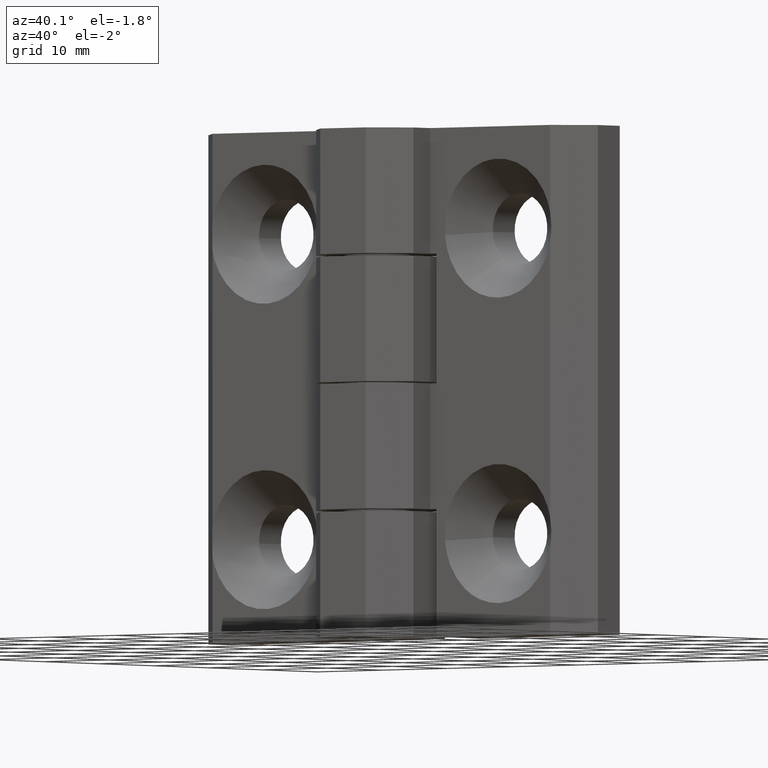
[diagram: clean part render]
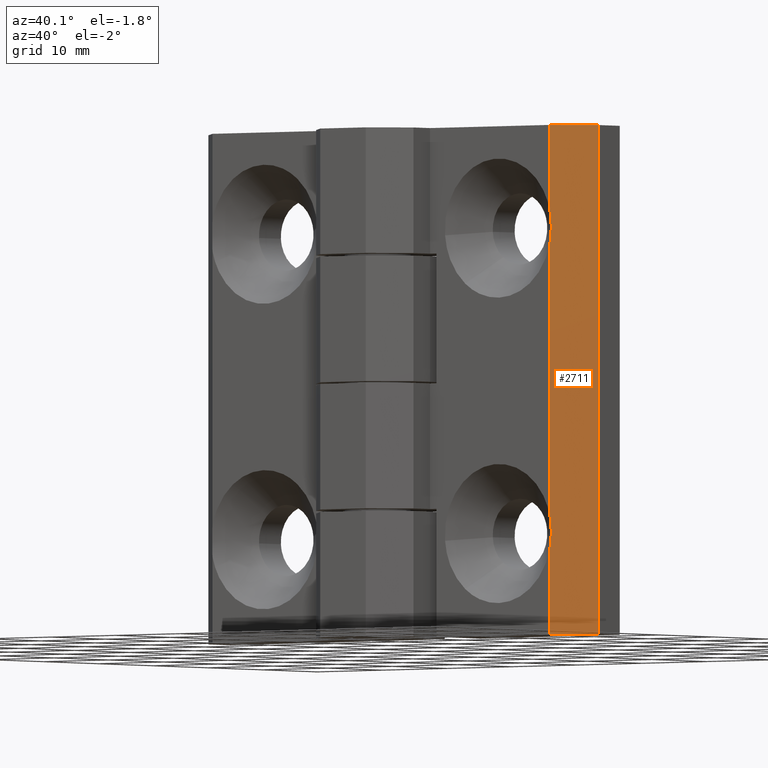
[diagram: same view with one face highlighted and labeled with its STEP entity id]
A machine part, auxiliary view. The second image highlights one B-rep face of the part: STEP entity #2711.
In plain terms, the highlighted face is a freeform B-spline surface patch.
Its self-contained STEP definition (entity closure, byte-faithful):
#830=CARTESIAN_POINT('',(26.000002659857198,0.500000023748733,46.200002036056802));
#831=VERTEX_POINT('',#830);
#847=CARTESIAN_POINT('',(26.000002659857198,0.500000023748733,49.800002523698502));
#848=VERTEX_POINT('',#847);
#849=CARTESIAN_POINT('',(26.000002659857191,0.500000023748725,49.800002523698502));
#850=CARTESIAN_POINT('',(26.133335999523609,0.633333363415146,48.600002361151269));
#851=CARTESIAN_POINT('',(26.133335999523620,0.633333363415149,47.400002198604042));
#852=CARTESIAN_POINT('',(26.000002659857198,0.500000023748737,46.200002036056802));
#853=QUASI_UNIFORM_CURVE('',3,(#849,#850,#851,#852),.UNSPECIFIED.,.F.,.U.);
#854=EDGE_CURVE('',#848,#831,#853,.T.);
#1158=CARTESIAN_POINT('',(26.000002659857198,0.500000023748733,10.200002036056800));
#1159=VERTEX_POINT('',#1158);
#1175=CARTESIAN_POINT('',(26.000002659857198,0.500000023748733,13.800002523698540));
#1176=VERTEX_POINT('',#1175);
#1177=CARTESIAN_POINT('',(26.000002659857198,0.500000023748730,13.800002523698540));
#1178=CARTESIAN_POINT('',(26.133335999523620,0.633333363415149,12.600002361151290));
#1179=CARTESIAN_POINT('',(26.133335999523620,0.633333363415148,11.400002198604049));
#1180=CARTESIAN_POINT('',(26.000002659857198,0.500000023748728,10.200002036056800));
#1181=QUASI_UNIFORM_CURVE('',3,(#1177,#1178,#1179,#1180),.UNSPECIFIED.,.F.,.U.);
#1182=EDGE_CURVE('',#1176,#1159,#1181,.T.);
#2503=CARTESIAN_POINT('',(26.000002659857198,0.500000023748733,60.000002849847100));
#2504=VERTEX_POINT('',#2503);
#2505=CARTESIAN_POINT('',(30.000002849847100,4.500000213738530,60.000002849847100));
#2506=VERTEX_POINT('',#2505);
#2507=CARTESIAN_POINT('',(26.000002659857198,0.500000023748733,60.000002849847100));
#2508=CARTESIAN_POINT('',(30.000002849847100,4.500000213738530,60.000002849847100));
#2509=QUASI_UNIFORM_CURVE('',1,(#2507,#2508),.UNSPECIFIED.,.F.,.U.);
#2510=EDGE_CURVE('',#2504,#2506,#2509,.T.);
#2655=CARTESIAN_POINT('',(30.000002849847100,4.500000213738530,0.0));
#2656=VERTEX_POINT('',#2655);
#2670=CARTESIAN_POINT('',(30.000002849847100,4.500000213738530,60.000002849847100));
#2671=CARTESIAN_POINT('',(30.000002849847100,4.500000213738530,0.0));
#2672=QUASI_UNIFORM_CURVE('',1,(#2670,#2671),.UNSPECIFIED.,.F.,.U.);
#2673=EDGE_CURVE('',#2506,#2656,#2672,.T.);
#2678=CARTESIAN_POINT('',(30.199802265088898,4.699799628980311,-2.997000026058224));
#2679=CARTESIAN_POINT('',(25.800202279020109,0.300199642911654,-2.997000026058224));
#2680=CARTESIAN_POINT('',(30.199802265088898,4.699799628980311,62.997004485230804));
#2681=CARTESIAN_POINT('',(25.800202279020109,0.300199642911654,62.997004485230804));
#2682=B_SPLINE_SURFACE_WITH_KNOTS('',1,1,((#2678,#2680),(#2679,#2681)),.UNSPECIFIED.,.F.,.F.,.U.,(2,2),(2,2),(0.0,6.221973969314865),(0.0,65.994004511289035),.UNSPECIFIED.);
#2683=CARTESIAN_POINT('',(26.000002659857198,0.500000023748733,60.000002849847100));
#2684=CARTESIAN_POINT('',(26.000002659857198,0.500000023748733,49.800002523698502));
#2685=QUASI_UNIFORM_CURVE('',1,(#2683,#2684),.UNSPECIFIED.,.F.,.U.);
#2686=EDGE_CURVE('',#2504,#848,#2685,.T.);
#2687=ORIENTED_EDGE('',*,*,#2686,.T.);
#2688=ORIENTED_EDGE('',*,*,#854,.T.);
#2689=CARTESIAN_POINT('',(26.000002659857198,0.500000023748733,46.200002036056802));
#2690=CARTESIAN_POINT('',(26.000002659857198,0.500000023748733,13.800002523698540));
#2691=QUASI_UNIFORM_CURVE('',1,(#2689,#2690),.UNSPECIFIED.,.F.,.U.);
#2692=EDGE_CURVE('',#831,#1176,#2691,.T.);
#2693=ORIENTED_EDGE('',*,*,#2692,.T.);
#2694=ORIENTED_EDGE('',*,*,#1182,.T.);
#2695=CARTESIAN_POINT('',(26.000002659857198,0.500000023748733,0.0));
#2696=VERTEX_POINT('',#2695);
#2697=CARTESIAN_POINT('',(26.000002659857198,0.500000023748733,10.200002036056800));
#2698=CARTESIAN_POINT('',(26.000002659857198,0.500000023748733,0.0));
#2699=QUASI_UNIFORM_CURVE('',1,(#2697,#2698),.UNSPECIFIED.,.F.,.U.);
#2700=EDGE_CURVE('',#1159,#2696,#2699,.T.);
#2701=ORIENTED_EDGE('',*,*,#2700,.T.);
#2702=CARTESIAN_POINT('',(26.000002659857198,0.500000023748733,0.0));
#2703=CARTESIAN_POINT('',(30.000002849847100,4.500000213738530,0.0));
#2704=QUASI_UNIFORM_CURVE('',1,(#2702,#2703),.UNSPECIFIED.,.F.,.U.);
#2705=EDGE_CURVE('',#2696,#2656,#2704,.T.);
#2706=ORIENTED_EDGE('',*,*,#2705,.T.);
#2707=ORIENTED_EDGE('',*,*,#2673,.F.);
#2708=ORIENTED_EDGE('',*,*,#2510,.F.);
#2709=EDGE_LOOP('',(#2687,#2688,#2693,#2694,#2701,#2706,#2707,#2708));
#2710=FACE_OUTER_BOUND('',#2709,.T.);
#2711=ADVANCED_FACE('',(#2710),#2682,.F.);